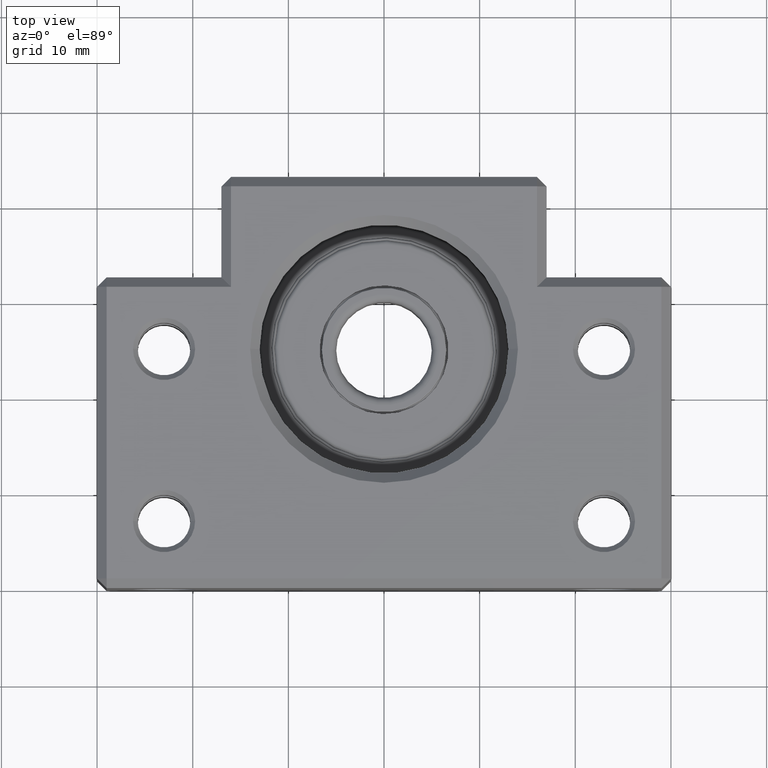
[diagram: clean part render]
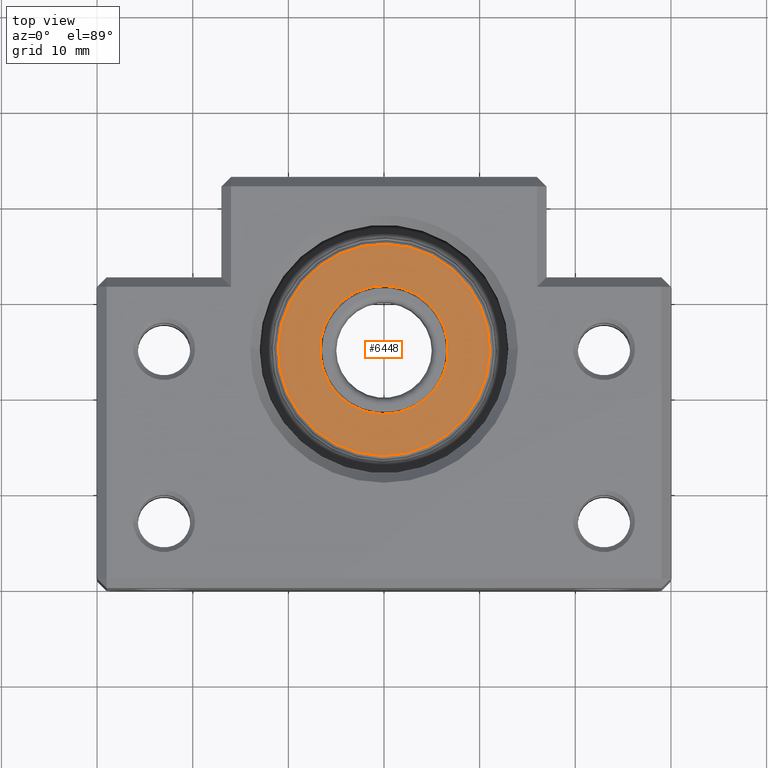
[diagram: same view with one face highlighted and labeled with its STEP entity id]
A machine part, top view. The second image highlights one B-rep face of the part: STEP entity #6448.
In plain terms, the highlighted planar face has unit normal (0, -0, -1).
Its self-contained STEP definition (entity closure, byte-faithful):
#332 = ORIENTED_EDGE ( 'NONE', *, *, #351, .T. ) ;
#339 = ORIENTED_EDGE ( 'NONE', *, *, #6189, .T. ) ;
#351 = EDGE_CURVE ( 'NONE', #6148, #6190, #1576, .T. ) ;
#1568 = DIRECTION ( 'NONE',  ( -0.02318273174959931500, -0.9997312443595159900, 1.287842224184711300E-016 ) ) ;
#1569 = DIRECTION ( 'NONE',  ( 1.110223024625156500E-016, -1.110223024625156500E-016, -1.000000000000000000 ) ) ;
#1570 = CARTESIAN_POINT ( 'NONE',  ( 1.205534150595034800E-014, 24.99999999999999300, 3.900000000000011900 ) ) ;
#1571 = AXIS2_PLACEMENT_3D ( 'NONE', #1570, #1569, #1568 ) ;
#1576 = CIRCLE ( 'NONE', #1571, 6.735000000000003900 ) ;
#4518 = CARTESIAN_POINT ( 'NONE',  ( -0.1561356983335394100, 18.26681006923865200, 3.900000000000012800 ) ) ;
#4630 = CARTESIAN_POINT ( 'NONE',  ( 0.1561356983335626700, 31.73318993076133800, 3.900000000000011000 ) ) ;
#4631 = DIRECTION ( 'NONE',  ( -0.02318273174959931500, -0.9997312443595159900, 1.287842224184711300E-016 ) ) ;
#4632 = DIRECTION ( 'NONE',  ( 1.110223024625156500E-016, -1.110223024625156500E-016, -1.000000000000000000 ) ) ;
#4633 = CARTESIAN_POINT ( 'NONE',  ( 1.205534150595034800E-014, 24.99999999999999300, 3.900000000000011900 ) ) ;
#4634 = AXIS2_PLACEMENT_3D ( 'NONE', #4633, #4632, #4631 ) ;
#4635 = CIRCLE ( 'NONE', #4634, 6.735000000000003900 ) ;
#4996 = CARTESIAN_POINT ( 'NONE',  ( 0.2562219831715161200, 36.04930708059196600, 3.900000000000010100 ) ) ;
#4997 = DIRECTION ( 'NONE',  ( -0.02318273174959932200, -0.9997312443595158800, 1.177171504924617900E-016 ) ) ;
#4998 = DIRECTION ( 'NONE',  ( 1.110223024625156500E-016, -1.110223024625156500E-016, -1.000000000000000000 ) ) ;
#4999 = CARTESIAN_POINT ( 'NONE',  ( 1.205534150595034800E-014, 24.99999999999999300, 3.900000000000011900 ) ) ;
#5000 = AXIS2_PLACEMENT_3D ( 'NONE', #4999, #4998, #4997 ) ;
#5001 = CIRCLE ( 'NONE', #5000, 11.05227744249483600 ) ;
#5002 = CARTESIAN_POINT ( 'NONE',  ( -0.2562219831714934200, 13.95069291940802400, 3.900000000000012800 ) ) ;
#5055 = DIRECTION ( 'NONE',  ( -0.02318273174959931800, -0.9997312443595158800, 1.110223024625156300E-016 ) ) ;
#5056 = DIRECTION ( 'NONE',  ( 1.109619430182625200E-016, -1.136252408463011300E-016, -1.000000000000000000 ) ) ;
#5057 = CARTESIAN_POINT ( 'NONE',  ( -6.733189930761327900, 25.15613569833354600, 3.900000000000010100 ) ) ;
#5058 = AXIS2_PLACEMENT_3D ( 'NONE', #5057, #5056, #5055 ) ;
#5059 = PLANE ( 'NONE',  #5058 ) ;
#5060 = FACE_BOUND ( 'NONE', #6414, .T. ) ;
#5061 = FACE_OUTER_BOUND ( 'NONE', #6446, .T. ) ;
#5088 = DIRECTION ( 'NONE',  ( -0.02318273174959932200, -0.9997312443595158800, 1.177171504924617900E-016 ) ) ;
#5089 = DIRECTION ( 'NONE',  ( 1.110223024625156500E-016, -1.110223024625156500E-016, -1.000000000000000000 ) ) ;
#5090 = CARTESIAN_POINT ( 'NONE',  ( 1.205534150595034800E-014, 24.99999999999999300, 3.900000000000011900 ) ) ;
#5091 = AXIS2_PLACEMENT_3D ( 'NONE', #5090, #5089, #5088 ) ;
#5095 = CIRCLE ( 'NONE', #5091, 11.05227744249483600 ) ;
#6148 = VERTEX_POINT ( 'NONE', #4518 ) ;
#6189 = EDGE_CURVE ( 'NONE', #6190, #6148, #4635, .T. ) ;
#6190 = VERTEX_POINT ( 'NONE', #4630 ) ;
#6414 = EDGE_LOOP ( 'NONE', ( #332, #339 ) ) ;
#6432 = ORIENTED_EDGE ( 'NONE', *, *, #6463, .F. ) ;
#6435 = ORIENTED_EDGE ( 'NONE', *, *, #6441, .F. ) ;
#6439 = VERTEX_POINT ( 'NONE', #5002 ) ;
#6441 = EDGE_CURVE ( 'NONE', #6439, #6442, #5001, .T. ) ;
#6442 = VERTEX_POINT ( 'NONE', #4996 ) ;
#6446 = EDGE_LOOP ( 'NONE', ( #6435, #6432 ) ) ;
#6448 = ADVANCED_FACE ( 'NONE', ( #5061, #5060 ), #5059, .F. ) ;
#6463 = EDGE_CURVE ( 'NONE', #6442, #6439, #5095, .T. ) ;